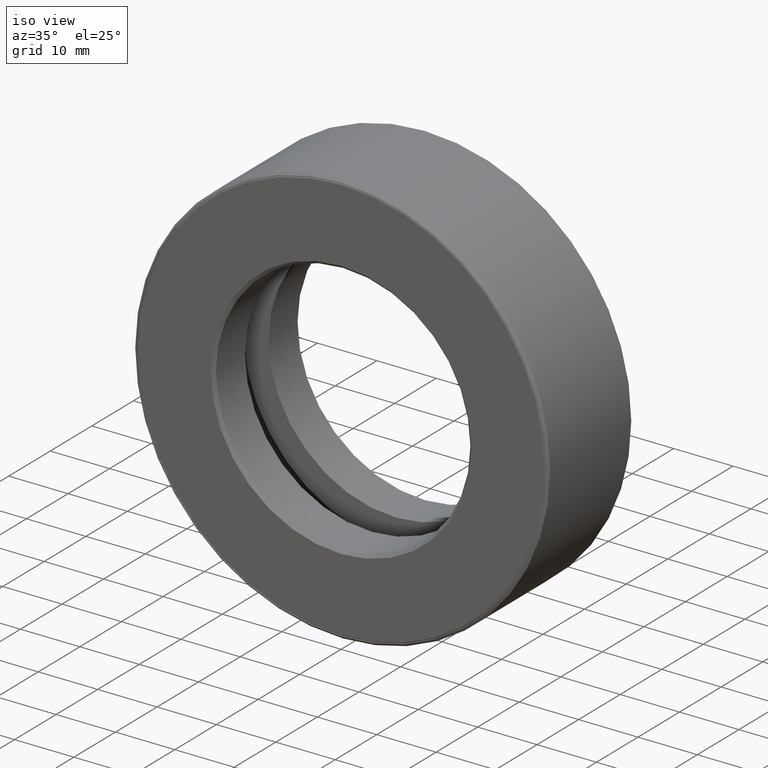
[diagram: clean part render]
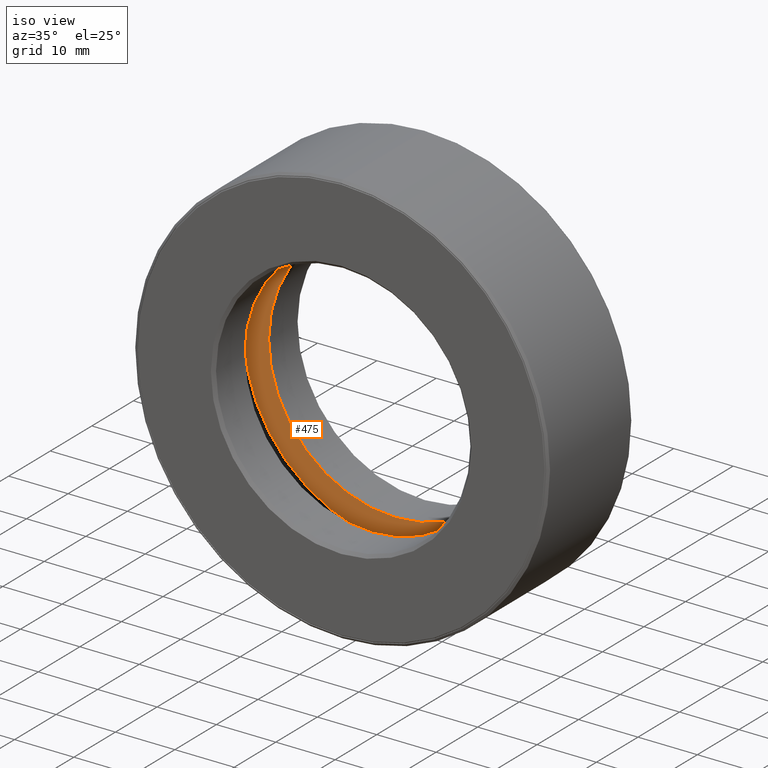
[diagram: same view with one face highlighted and labeled with its STEP entity id]
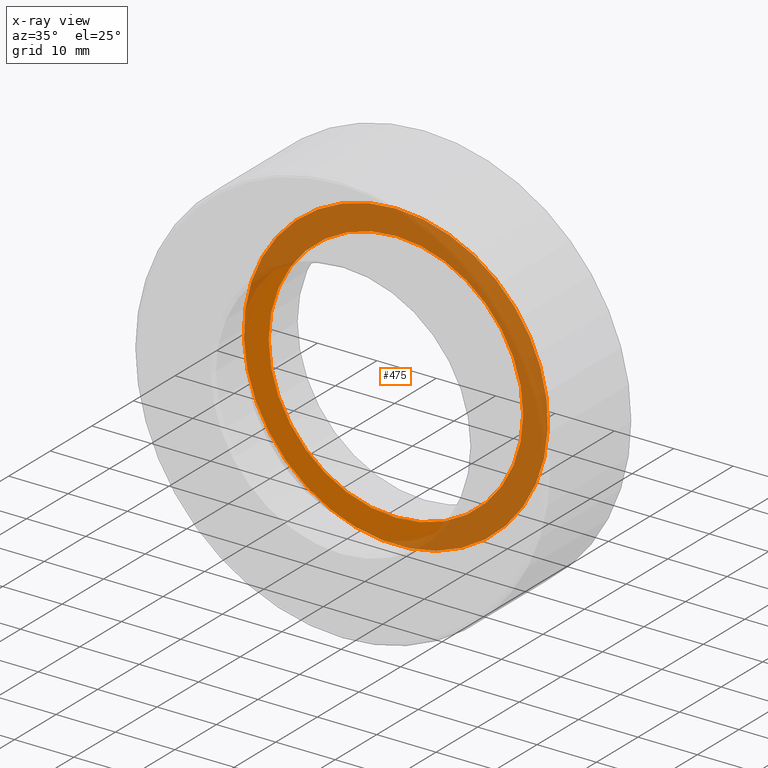
[diagram: x-ray of the same camera — body ghosted, the highlighted face saturated]
A machine part, iso view. The second image highlights one B-rep face of the part: STEP entity #475.
The next image is the same camera in x-ray: the body ghosted, the highlighted face saturated — about 65% of this face is hidden behind the body in this view.
In plain terms, the highlighted planar face has unit normal (0, -1, 0).
Its self-contained STEP definition (entity closure, byte-faithful):
#19 = DIRECTION ( 'NONE',  ( 0.0000000000000000000, 0.0000000000000000000, 1.000000000000000000 ) ) ;
#23 = AXIS2_PLACEMENT_3D ( 'NONE', #506, #457, #600 ) ;
#28 = ORIENTED_EDGE ( 'NONE', *, *, #161, .T. ) ;
#32 = FACE_OUTER_BOUND ( 'NONE', #425, .T. ) ;
#36 = CARTESIAN_POINT ( 'NONE',  ( 0.0000000000000000000, 0.5187499999999998200, 0.0000000000000000000 ) ) ;
#40 = AXIS2_PLACEMENT_3D ( 'NONE', #436, #245, #19 ) ;
#70 = CIRCLE ( 'NONE', #40, 0.8437500000000000000 ) ;
#134 = AXIS2_PLACEMENT_3D ( 'NONE', #36, #595, #513 ) ;
#135 = CARTESIAN_POINT ( 'NONE',  ( 0.0000000000000000000, 0.5187499999999998200, 1.008500000000000000 ) ) ;
#161 = EDGE_CURVE ( 'NONE', #340, #340, #70, .T. ) ;
#236 = CIRCLE ( 'NONE', #134, 1.008500000000000000 ) ;
#245 = DIRECTION ( 'NONE',  ( -0.0000000000000000000, 1.000000000000000000, -0.0000000000000000000 ) ) ;
#340 = VERTEX_POINT ( 'NONE', #416 ) ;
#409 = PLANE ( 'NONE',  #23 ) ;
#410 = EDGE_CURVE ( 'NONE', #420, #420, #236, .T. ) ;
#416 = CARTESIAN_POINT ( 'NONE',  ( 0.0000000000000000000, 0.5187499999999999300, 0.8437500000000000000 ) ) ;
#420 = VERTEX_POINT ( 'NONE', #135 ) ;
#425 = EDGE_LOOP ( 'NONE', ( #514 ) ) ;
#436 = CARTESIAN_POINT ( 'NONE',  ( 0.0000000000000000000, 0.5187499999999999300, 0.0000000000000000000 ) ) ;
#457 = DIRECTION ( 'NONE',  ( 0.0000000000000000000, -1.000000000000000000, 0.0000000000000000000 ) ) ;
#475 = ADVANCED_FACE ( 'NONE', ( #478, #32 ), #409, .T. ) ;
#478 = FACE_BOUND ( 'NONE', #548, .T. ) ;
#506 = CARTESIAN_POINT ( 'NONE',  ( -2.150449388032378900E-016, 0.5187499999999999300, 0.0000000000000000000 ) ) ;
#513 = DIRECTION ( 'NONE',  ( 0.0000000000000000000, 0.0000000000000000000, 1.000000000000000000 ) ) ;
#514 = ORIENTED_EDGE ( 'NONE', *, *, #410, .F. ) ;
#548 = EDGE_LOOP ( 'NONE', ( #28 ) ) ;
#595 = DIRECTION ( 'NONE',  ( -0.0000000000000000000, 1.000000000000000000, -0.0000000000000000000 ) ) ;
#600 = DIRECTION ( 'NONE',  ( 0.0000000000000000000, -0.0000000000000000000, -1.000000000000000000 ) ) ;